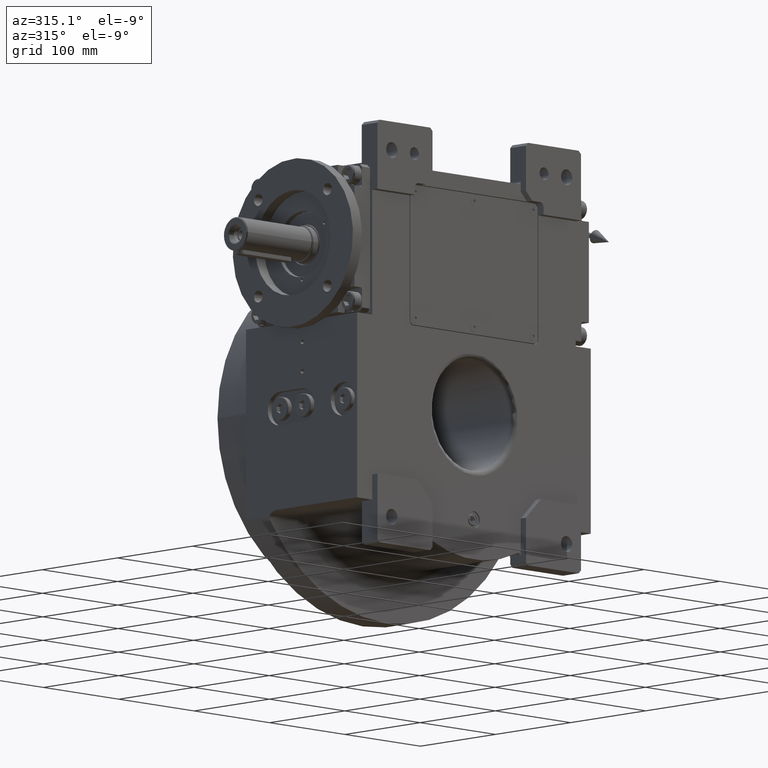
[diagram: clean part render]
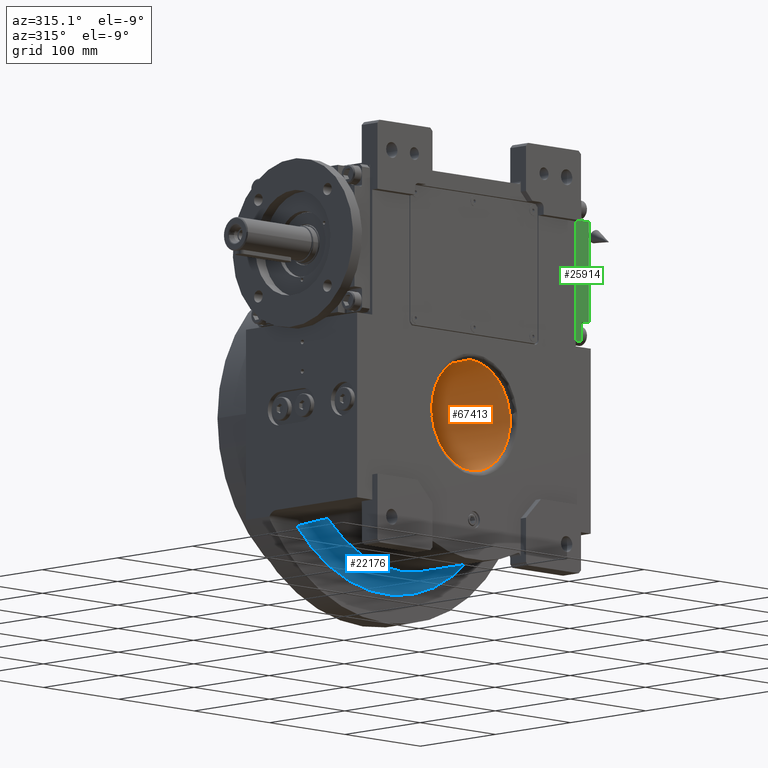
[diagram: same view with three faces highlighted in distinct colors, each labeled with its STEP entity id]
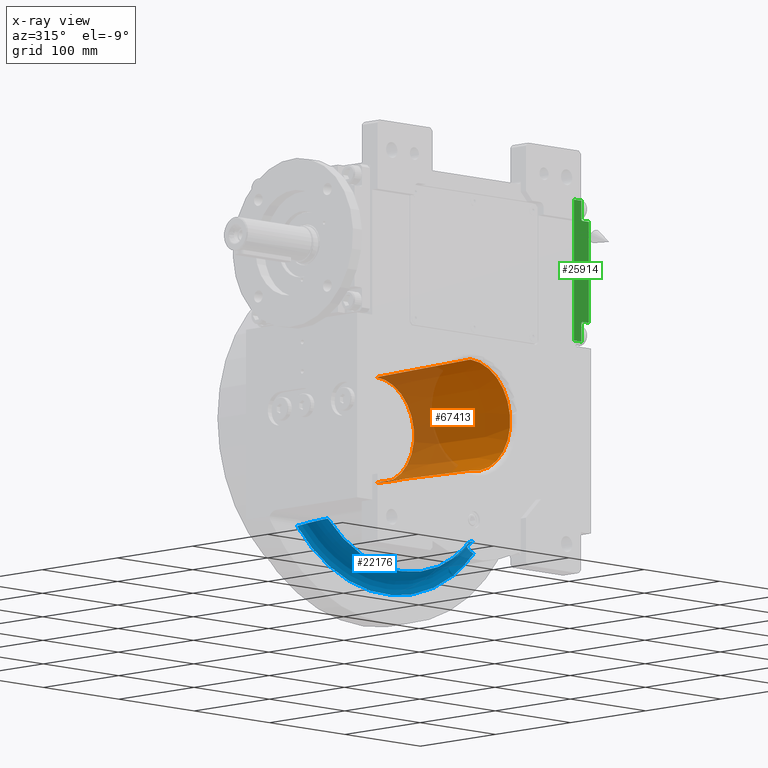
[diagram: x-ray of the same camera — body ghosted, the three highlighted faces saturated]
A machine part, auxiliary view with three faces highlighted in distinct colors.
The next image is the same camera in x-ray (body ghosted, the three faces saturated) — at least one of them is partly hidden behind the body in this view.
Their STEP definitions:

[orange] entity #67413 — the highlighted conical surface has half-angle 1.292 deg.
#833 = CARTESIAN_POINT ( 'NONE',  ( -5.180071170158429987E-08, -68.11275406274060629, 3.434346457190809174E-14 ) ) ;
#3534 = EDGE_CURVE ( 'NONE', #53581, #41249, #32143, .T. ) ;
#7576 = AXIS2_PLACEMENT_3D ( 'NONE', #60350, #65660, #49352 ) ;
#8371 = CARTESIAN_POINT ( 'NONE',  ( -3.366447261396295104E-11, -68.11275327462200835, 52.88976135205919604 ) ) ;
#14754 = ORIENTED_EDGE ( 'NONE', *, *, #19788, .T. ) ;
#15939 = VECTOR ( 'NONE', #53600, 1000.000000000000114 ) ;
#16390 = ORIENTED_EDGE ( 'NONE', *, *, #47262, .F. ) ;
#16518 = DIRECTION ( 'NONE',  ( 0.000000000000000000, -1.000000000000000000, 1.836909530733564901E-16 ) ) ;
#16810 = EDGE_CURVE ( 'NONE', #53581, #32946, #59712, .T. ) ;
#17126 = DIRECTION ( 'NONE',  ( -2.310691404686089221E-08, 0.9999999999999997780, -1.490116125507999888E-08 ) ) ;
#18208 = CARTESIAN_POINT ( 'NONE',  ( 5.632922360699180090E-12, 57.06765196477320501, -50.06614318876450653 ) ) ;
#19788 = EDGE_CURVE ( 'NONE', #41249, #32261, #35940, .T. ) ;
#21499 = VECTOR ( 'NONE', #64099, 1000.000000000000114 ) ;
#22295 = LINE ( 'NONE', #26926, #15939 ) ;
#26071 = CARTESIAN_POINT ( 'NONE',  ( -5.647091595521470526E-12, 57.06765196477320501, 50.06614318876450653 ) ) ;
#26926 = CARTESIAN_POINT ( 'NONE',  ( 6.477127694746659705E-15, -68.11275327462179519, -52.88976135205919604 ) ) ;
#32143 = LINE ( 'NONE', #70163, #21499 ) ;
#32261 = VERTEX_POINT ( 'NONE', #18208 ) ;
#32946 = VERTEX_POINT ( 'NONE', #43586 ) ;
#35940 = CIRCLE ( 'NONE', #7576, 50.06614321695208503 ) ;
#41249 = VERTEX_POINT ( 'NONE', #26071 ) ;
#42159 = DIRECTION ( 'NONE',  ( 0.000000000000000000, 0.000000000000000000, 1.000000000000000000 ) ) ;
#43586 = CARTESIAN_POINT ( 'NONE',  ( 3.366158563859759886E-11, -68.11275327462200835, -52.88976135205919604 ) ) ;
#45942 = CONICAL_SURFACE ( 'NONE', #48212, 1.000000000000000000, 0.02255256665030591981 ) ;
#47262 = EDGE_CURVE ( 'NONE', #32946, #32261, #22295, .T. ) ;
#48212 = AXIS2_PLACEMENT_3D ( 'NONE', #70197, #16518, #42159 ) ;
#48545 = FACE_OUTER_BOUND ( 'NONE', #63856, .T. ) ;
#49352 = DIRECTION ( 'NONE',  ( 0.9817544671349441865, 1.960699413717118186E-08, -0.1901530074981230556 ) ) ;
#53581 = VERTEX_POINT ( 'NONE', #8371 ) ;
#53600 = DIRECTION ( 'NONE',  ( -2.761658737181604074E-18, 0.9997457016474147196, 0.02255065492437784494 ) ) ;
#53991 = ORIENTED_EDGE ( 'NONE', *, *, #16810, .F. ) ;
#55849 = DIRECTION ( 'NONE',  ( 0.9882587857891660388, 2.055887273401757417E-08, -0.1527893069246760438 ) ) ;
#56308 = AXIS2_PLACEMENT_3D ( 'NONE', #833, #17126, #55849 ) ;
#59712 = CIRCLE ( 'NONE', #56308, 52.88976140256119152 ) ;
#60350 = CARTESIAN_POINT ( 'NONE',  ( -3.083077640091004570E-08, 57.06765196477320501, 2.539432025222259547E-15 ) ) ;
#62025 = ORIENTED_EDGE ( 'NONE', *, *, #3534, .T. ) ;
#63856 = EDGE_LOOP ( 'NONE', ( #62025, #14754, #16390, #53991 ) ) ;
#64099 = DIRECTION ( 'NONE',  ( 5.523317474363207377E-18, 0.9997457016474147196, -0.02255065492437819882 ) ) ;
#65660 = DIRECTION ( 'NONE',  ( -1.997138262491069651E-08, 0.9999999999999997780, -6.123233971614118157E-17 ) ) ;
#67413 = ADVANCED_FACE ( 'NONE', ( #48545 ), #45942, .F. ) ;
#70163 = CARTESIAN_POINT ( 'NONE',  ( -1.295425538949331941E-14, -68.11275327462179519, 52.88976135205919604 ) ) ;
#70197 = CARTESIAN_POINT ( 'NONE',  ( 0.000000000000000000, 2232.333333333314840, -3.962844522719785252E-13 ) ) ;

[blue] entity #22176 — the highlighted toroidal blend (fillet) surface has major radius 158 mm and minor (blend) radius 20 mm.
#125 = ORIENTED_EDGE ( 'NONE', *, *, #47662, .T. ) ;
#364 = CARTESIAN_POINT ( 'NONE',  ( 98.48471084682699939, 33.97079976953421721, -99.63148764706355109 ) ) ;
#698 = CARTESIAN_POINT ( 'NONE',  ( 112.6337903164633758, 44.53780329086850287, -104.5239396644698502 ) ) ;
#1805 = CARTESIAN_POINT ( 'NONE',  ( -110.4507057160706438, 43.94872069333644049, -103.7991858523617452 ) ) ;
#2166 = CARTESIAN_POINT ( 'NONE',  ( -98.02791288108049628, 32.96098501412838999, -99.46561891031363700 ) ) ;
#2524 = CARTESIAN_POINT ( 'NONE',  ( -102.1052124814145685, 38.84748452432424415, -100.9274324292788094 ) ) ;
#2863 = CARTESIAN_POINT ( 'NONE',  ( -100.3652794098986902, 36.87972709017024897, -100.3072398612967220 ) ) ;
#3221 = CARTESIAN_POINT ( 'NONE',  ( -113.1631049617858622, 44.62956057005464316, -104.6995521603640498 ) ) ;
#3493 = CARTESIAN_POINT ( 'NONE',  ( 96.30723760260589472, 24.99999990761120117, -98.83797943607669367 ) ) ;
#3797 = CARTESIAN_POINT ( 'NONE',  ( -64.41635450183450473, 45.00000000000000000, -144.8381713325094324 ) ) ;
#4137 = CARTESIAN_POINT ( 'NONE',  ( -101.7965497933509909, 45.00000000000000000, -121.4959109195396110 ) ) ;
#4978 = CARTESIAN_POINT ( 'NONE',  ( 116.3458202215898751, 45.00009952038519856, -105.7365312948304279 ) ) ;
#5313 = CARTESIAN_POINT ( 'NONE',  ( 115.2789584378532908, 44.95770843063282030, -105.3909224794406327 ) ) ;
#5670 = CARTESIAN_POINT ( 'NONE',  ( 98.02029075397882707, 32.94461909195858595, -99.46305897812415253 ) ) ;
#6020 = CARTESIAN_POINT ( 'NONE',  ( 108.7699844828208597, 43.31492083898538681, -103.2332460237712013 ) ) ;
#6358 = CARTESIAN_POINT ( 'NONE',  ( 102.0508725851416756, 38.79353669661188064, -100.9077352945622579 ) ) ;
#6400 = CARTESIAN_POINT ( 'NONE',  ( -117.1660380023439956, 45.00001431931600138, -105.9999239592122109 ) ) ;
#7117 = CARTESIAN_POINT ( 'NONE',  ( -116.7646410946360049, 44.99998530194281443, -105.8709790865936355 ) ) ;
#7461 = CARTESIAN_POINT ( 'NONE',  ( -101.7297215537501955, 38.46499574230020357, -100.7942339710923818 ) ) ;
#7582 = CARTESIAN_POINT ( 'NONE',  ( 97.02992846564075080, 30.28103333706581068, -99.10657987401545199 ) ) ;
#7824 = CARTESIAN_POINT ( 'NONE',  ( -113.2014659484088526, 44.63667040653874096, -104.7121690570024697 ) ) ;
#8192 = CARTESIAN_POINT ( 'NONE',  ( -102.7503572650319370, 39.46430266327028846, -101.1553830789643200 ) ) ;
#8528 = CARTESIAN_POINT ( 'NONE',  ( -109.4752336681219163, 43.59488064486146897, -103.4714376798484778 ) ) ;
#9456 = CARTESIAN_POINT ( 'NONE',  ( -117.1660380023439956, 45.00001431931600138, -105.9999239592122109 ) ) ;
#9796 = CARTESIAN_POINT ( 'NONE',  ( -21.98885812455705135, 45.00000000000000000, -156.9786534940434990 ) ) ;
#10633 = CARTESIAN_POINT ( 'NONE',  ( 97.85275650508563672, 32.56236914450305875, -99.40243881657917768 ) ) ;
#10989 = CARTESIAN_POINT ( 'NONE',  ( 117.1665481270144085, 45.00000000000000000, -106.0000000000000000 ) ) ;
#11338 = CARTESIAN_POINT ( 'NONE',  ( 106.5230779561971985, 42.22457348863358106, -102.4693920495566175 ) ) ;
#12236 = CARTESIAN_POINT ( 'NONE',  ( -1.421085471520200056E-14, 25.00000000000330047, 8.526512829121199706E-14 ) ) ;
#12625 = TOROIDAL_SURFACE ( 'NONE', #13795, 158.0000000000000000, 20.00000000000000000 ) ;
#12789 = CARTESIAN_POINT ( 'NONE',  ( -102.2964152114121248, 39.03719391014137585, -100.9951587366911241 ) ) ;
#12904 = CARTESIAN_POINT ( 'NONE',  ( 96.30961973117844366, 26.25722250582394679, -98.83759602172548853 ) ) ;
#13135 = CARTESIAN_POINT ( 'NONE',  ( -109.1605355308136609, 43.47300632657120900, -103.3652613385540207 ) ) ;
#13496 = CARTESIAN_POINT ( 'NONE',  ( -109.4371449076648020, 43.58039139906387760, -103.4586012990809252 ) ) ;
#13795 = AXIS2_PLACEMENT_3D ( 'NONE', #46345, #13985, #29613 ) ;
#13869 = CARTESIAN_POINT ( 'NONE',  ( -112.2734746109593260, 44.44468254698182363, -104.4058678920740988 ) ) ;
#13985 = DIRECTION ( 'NONE',  ( 0.000000000000000000, -1.000000000000000000, 0.000000000000000000 ) ) ;
#14186 = CARTESIAN_POINT ( 'NONE',  ( -112.8981352970310326, 44.57872936801063446, -104.6123043516303426 ) ) ;
#15090 = VERTEX_POINT ( 'NONE', #24295 ) ;
#15962 = CARTESIAN_POINT ( 'NONE',  ( 102.6312996237867168, 39.35459407148432831, -101.1127928936633111 ) ) ;
#16297 = CARTESIAN_POINT ( 'NONE',  ( 102.7499884497114238, 39.46404896067710411, -101.1546350695295473 ) ) ;
#16652 = CARTESIAN_POINT ( 'NONE',  ( 102.7270658436678303, 39.44302597977765146, -101.1465560309166420 ) ) ;
#18091 = CARTESIAN_POINT ( 'NONE',  ( -106.7795100371588859, 42.36370184623466884, -102.5536834389168064 ) ) ;
#18450 = CARTESIAN_POINT ( 'NONE',  ( -107.7423295384170245, 42.85102449398583957, -102.8832939820001116 ) ) ;
#18569 = CARTESIAN_POINT ( 'NONE',  ( 97.48234618482011626, 31.63550269026396577, -99.26904948111314297 ) ) ;
#18805 = CARTESIAN_POINT ( 'NONE',  ( -106.1807118417980007, 42.01955951595629557, -102.3474989434262028 ) ) ;
#19171 = CARTESIAN_POINT ( 'NONE',  ( -111.3923422199803639, 44.22351198310433773, -104.1132547796615171 ) ) ;
#19528 = CARTESIAN_POINT ( 'NONE',  ( -96.88299641673512497, 29.71310565171039997, -99.04611361363333799 ) ) ;
#20945 = CARTESIAN_POINT ( 'NONE',  ( 96.30723760260589472, 24.99999990761120117, -98.83797943607669367 ) ) ;
#21311 = CARTESIAN_POINT ( 'NONE',  ( 108.4800013347112042, 43.18941542812900281, -103.1351226245848949 ) ) ;
#21662 = CARTESIAN_POINT ( 'NONE',  ( 97.90664548853494864, 32.68827471051651656, -99.42190602882016037 ) ) ;
#22176 = ADVANCED_FACE ( 'NONE', ( #59482 ), #12625, .F. ) ;
#23453 = CARTESIAN_POINT ( 'NONE',  ( -97.50460443159397528, 31.69185725558088507, -99.27465210942251872 ) ) ;
#23807 = CARTESIAN_POINT ( 'NONE',  ( -102.7293842753246480, 39.44505987403460523, -101.1479936078508217 ) ) ;
#24165 = CARTESIAN_POINT ( 'NONE',  ( -98.03293628953102257, 32.97209666675917106, -99.46744407336238680 ) ) ;
#24295 = CARTESIAN_POINT ( 'NONE',  ( 117.1665481270144085, 45.00000000000000000, -106.0000000000000000 ) ) ;
#24512 = CARTESIAN_POINT ( 'NONE',  ( -101.4886153696198647, 38.20591153641694859, -100.7084430121944365 ) ) ;
#24661 = VERTEX_POINT ( 'NONE', #6400 ) ;
#24865 = CARTESIAN_POINT ( 'NONE',  ( -113.2270883732561799, 44.64139532762662554, -104.7205948346391580 ) ) ;
#25781 = CARTESIAN_POINT ( 'NONE',  ( 21.98865651185845138, 45.00000000000000000, -156.9786712556644943 ) ) ;
#26618 = CARTESIAN_POINT ( 'NONE',  ( 109.3745464157829872, 43.55663680806992488, -103.4372806364187625 ) ) ;
#27672 = CARTESIAN_POINT ( 'NONE',  ( 109.1198961715385565, 43.45704474481149759, -103.3513959743997361 ) ) ;
#28007 = CARTESIAN_POINT ( 'NONE',  ( 102.3983983773695172, 39.13454416598305130, -101.0305906898127120 ) ) ;
#28761 = CARTESIAN_POINT ( 'NONE',  ( -117.1660380023439956, 45.00001431931600138, -105.9999239592122109 ) ) ;
#29110 = CARTESIAN_POINT ( 'NONE',  ( -102.7556243044858064, 39.46912785005818591, -101.1572386221299240 ) ) ;
#29211 = B_SPLINE_CURVE_WITH_KNOTS ( 'NONE', 3,
 ( #59707, #56116, #67478, #19528, #45847, #57179, #23453, #51534, #66773, #56846, #61457, #29474, #29830, #2166, #24165, #34461, #41227, #2863, #51187, #24512, #7461, #2524, #12789, #35528, #39807, #45495, #23807, #56472, #8192, #29110, #67130, #45138, #18805, #18091, #18450, #62856, #62521, #40516, #13135, #40154, #62167, #13496, #35171, #50821, #46207, #8528, #67840, #1805, #19171, #40872, #13869, #30176, #51891, #14186, #61802, #3221, #7824, #24865, #34813, #46561, #68204, #55784, #7117, #28761 ),
 .UNSPECIFIED., .F., .F.,
 ( 4, 2, 2, 2, 1, 1, 1, 1, 2, 2, 2, 2, 2, 1, 1, 1, 1, 1, 2, 2, 2, 2, 2, 1, 1, 1, 1, 1, 1, 2, 2, 2, 2, 2, 1, 1, 1, 2, 2, 2, 4 ),
 ( 0.000000000000000000, 0.1250000000000111300, 0.1875000000000168754, 0.2187500000000195677, 0.2343750000000205391, 0.2421875000000207612, 0.2460937500000210110, 0.2480468750000210110, 0.2490234375000210942, 0.2500000000000211497, 0.3750000000000347500, 0.4375000000000414113, 0.4687500000000452416, 0.4843750000000466294, 0.4921875000000472955, 0.4960937500000481282, 0.4980468750000489053, 0.4990234375000496825, 0.4995117187500495715, 0.5000000000000494049, 0.6250000000001078027, 0.6875000000001370015, 0.7187500000001518785, 0.7343750000001594280, 0.7421875000001629807, 0.7460937500001643130, 0.7480468750001647571, 0.7490234375001647571, 0.7495117187501649791, 0.7497558593751655343, 0.7500000000001662004, 0.8125000000001361133, 0.8437500000001215694, 0.8593750000001149081, 0.8671875000001115774, 0.8710937500001101341, 0.8730468750001093570, 0.8740234375001090239, 0.8750000000001086908, 0.9375000000000544009, 1.000000000000000000 ),
 .UNSPECIFIED. ) ;
#29233 = CARTESIAN_POINT ( 'NONE',  ( 97.36157097504504065, 31.29695299417163667, -99.22571455668132501 ) ) ;
#29474 = CARTESIAN_POINT ( 'NONE',  ( -98.00546406152352574, 32.91113758827333413, -99.45746077517848960 ) ) ;
#29613 = DIRECTION ( 'NONE',  ( -0.7986875995212583401, 0.000000000000000000, -0.6017458918604845497 ) ) ;
#29830 = CARTESIAN_POINT ( 'NONE',  ( -98.01892274206869615, 32.94104951340082010, -99.46235204995994650 ) ) ;
#30176 = CARTESIAN_POINT ( 'NONE',  ( -112.4607002535011873, 44.48710846717178669, -104.4678539401486432 ) ) ;
#30609 = VERTEX_POINT ( 'NONE', #67693 ) ;
#30774 = CARTESIAN_POINT ( 'NONE',  ( -83.96482471285699489, 45.00000000000000000, -134.4515343287771998 ) ) ;
#31120 = EDGE_CURVE ( 'NONE', #43902, #15090, #33443, .T. ) ;
#31455 = CARTESIAN_POINT ( 'NONE',  ( 43.59869364544065462, 45.00000000000000000, -152.4011103777230005 ) ) ;
#31962 = CARTESIAN_POINT ( 'NONE',  ( 109.2723530990759429, 43.51694133331180581, -103.4028213162863494 ) ) ;
#32295 = CARTESIAN_POINT ( 'NONE',  ( 109.4247943805015808, 43.57593919126923510, -103.4542186149024303 ) ) ;
#32658 = CARTESIAN_POINT ( 'NONE',  ( 102.1879067513015258, 38.93036966924995568, -100.9561944668075455 ) ) ;
#33012 = CARTESIAN_POINT ( 'NONE',  ( 107.9131611571321798, 42.93445073039974602, -102.9430406042122996 ) ) ;
#33443 = B_SPLINE_CURVE_WITH_KNOTS ( 'NONE', 3,
 ( #20945, #12904, #34575, #56231, #7582, #29233, #18569, #44031, #42984, #10633, #21662, #49360, #43673, #5670, #69972, #53650, #64265, #364, #64974, #65312, #37998, #64613, #54340, #6358, #32658, #28007, #49719, #15962, #60001, #16652, #48309, #16297, #38356, #42631, #37651, #54695, #65666, #11338, #59644, #33012, #21311, #6020, #27672, #31962, #26618, #32295, #53989, #43340, #698, #59304, #5313, #4978, #10989 ),
 .UNSPECIFIED., .F., .F.,
 ( 4, 2, 2, 2, 2, 1, 1, 1, 1, 2, 2, 2, 2, 2, 2, 1, 1, 1, 1, 1, 2, 2, 2, 2, 2, 1, 1, 2, 2, 2, 2, 4 ),
 ( 0.000000000000000000, 0.1249999999998392397, 0.1874999999997588596, 0.2187499999997192801, 0.2343749999996997124, 0.2421874999996898037, 0.2460937499996850297, 0.2480468749996828648, 0.2490234374996819489, 0.2495117187496817546, 0.2499999999996815325, 0.3749999999995941025, 0.4374999999995501376, 0.4687499999995277111, 0.4843749999995164979, 0.4921874999995102251, 0.4960937499995068944, 0.4980468749995055622, 0.4990234374995043964, 0.4995117187495035638, 0.4997558593745026756, 0.4999999999995017319, 0.6249999999996301847, 0.6874999999996945776, 0.7187499999997267741, 0.7343749999997423172, 0.7421874999997500888, 0.7460937499997538636, 0.7499999999997576383, 0.8124999999998182565, 0.8749999999998788747, 1.000000000000000000 ),
 .UNSPECIFIED. ) ;
#34461 = CARTESIAN_POINT ( 'NONE',  ( -98.54806655395772452, 34.10925224219861462, -99.65458556124448819 ) ) ;
#34575 = CARTESIAN_POINT ( 'NONE',  ( 96.42904774952934588, 27.58533141082950735, -98.88715296331103843 ) ) ;
#34813 = CARTESIAN_POINT ( 'NONE',  ( -113.2388050366955667, 44.64354608652779177, -104.7244472051020097 ) ) ;
#35171 = CARTESIAN_POINT ( 'NONE',  ( -109.4570425004065584, 43.58796948114684966, -103.4653075323048057 ) ) ;
#35528 = CARTESIAN_POINT ( 'NONE',  ( -102.5255579008334479, 39.25560902335374891, -101.0761116096675352 ) ) ;
#37504 = CARTESIAN_POINT ( 'NONE',  ( 112.2734842588863842, 45.00000000000000000, -111.4014792453958052 ) ) ;
#37651 = CARTESIAN_POINT ( 'NONE',  ( 103.3977546460237562, 40.05675034197459183, -101.3829155952155929 ) ) ;
#37998 = CARTESIAN_POINT ( 'NONE',  ( 100.6690459606547705, 37.27067431726949565, -100.4179235864729520 ) ) ;
#38356 = CARTESIAN_POINT ( 'NONE',  ( 102.7545780126843340, 39.46825219890278191, -101.1562525515439432 ) ) ;
#39807 = CARTESIAN_POINT ( 'NONE',  ( -102.6416497146342408, 39.36405972610243964, -101.1170677917055087 ) ) ;
#40154 = CARTESIAN_POINT ( 'NONE',  ( -109.3181507463841768, 43.53466286722584755, -103.4184730461046655 ) ) ;
#40516 = CARTESIAN_POINT ( 'NONE',  ( -108.8488826586078488, 43.34740058216166858, -103.2598516227548657 ) ) ;
#40872 = CARTESIAN_POINT ( 'NONE',  ( -111.7301272109056498, 44.31438120929762192, -104.2256781774488275 ) ) ;
#41227 = CARTESIAN_POINT ( 'NONE',  ( -99.18958940278133696, 35.23783606590234285, -99.88545211301371296 ) ) ;
#41927 = EDGE_CURVE ( 'NONE', #30609, #24661, #29211, .T. ) ;
#42116 = ORIENTED_EDGE ( 'NONE', *, *, #66227, .F. ) ;
#42631 = CARTESIAN_POINT ( 'NONE',  ( 102.7579227797914854, 39.47131357591320011, -101.1574313033593882 ) ) ;
#42984 = CARTESIAN_POINT ( 'NONE',  ( 97.74688043386996128, 32.31025036503177006, -99.36423024539772086 ) ) ;
#43340 = CARTESIAN_POINT ( 'NONE',  ( 111.1261820987919577, 44.16061954937864442, -104.0245863794300476 ) ) ;
#43673 = CARTESIAN_POINT ( 'NONE',  ( 98.00384888286747298, 32.90804153405046151, -99.45709908681564571 ) ) ;
#43902 = VERTEX_POINT ( 'NONE', #3493 ) ;
#44031 = CARTESIAN_POINT ( 'NONE',  ( 97.67883289305895289, 32.14176207053703394, -99.33972559280917380 ) ) ;
#44934 = DIRECTION ( 'NONE',  ( -0.6978784504689377055, -1.201735973212917754E-14, -0.7162162162162165613 ) ) ;
#45138 = CARTESIAN_POINT ( 'NONE',  ( -104.5087876018555448, 40.95577502017587790, -101.7701399989986726 ) ) ;
#45495 = CARTESIAN_POINT ( 'NONE',  ( -102.7000760039274923, 39.41809226182505910, -101.1376651757015992 ) ) ;
#45847 = CARTESIAN_POINT ( 'NONE',  ( -97.06297459206342637, 30.37875981429069938, -99.11244784926033446 ) ) ;
#46207 = CARTESIAN_POINT ( 'NONE',  ( -109.4712663826515495, 43.59337483259150048, -103.4701008455638771 ) ) ;
#46345 = CARTESIAN_POINT ( 'NONE',  ( -2.057655180072804513E-28, 25.00000000000000000, 0.000000000000000000 ) ) ;
#46561 = CARTESIAN_POINT ( 'NONE',  ( -114.1474023438828596, 44.80939919492819001, -105.0231329103317108 ) ) ;
#46958 = AXIS2_PLACEMENT_3D ( 'NONE', #12236, #48882, #44934 ) ;
#47126 = CARTESIAN_POINT ( 'NONE',  ( -4.611055492802900184E-05, 45.00000000000000000, -158.5100177325210211 ) ) ;
#47662 = EDGE_CURVE ( 'NONE', #24661, #15090, #48991, .T. ) ;
#47835 = CARTESIAN_POINT ( 'NONE',  ( 83.96432363714549751, 45.00000000000000000, -134.4519182908271944 ) ) ;
#48123 = CIRCLE ( 'NONE', #46958, 138.0000000000000853 ) ;
#48309 = CARTESIAN_POINT ( 'NONE',  ( 102.7431065449346335, 39.45774344501223396, -101.1522096567761935 ) ) ;
#48882 = DIRECTION ( 'NONE',  ( -6.789570679155330615E-15, -1.000000000000000000, 2.340198913247644897E-14 ) ) ;
#48991 = B_SPLINE_CURVE_WITH_KNOTS ( 'NONE', 3,
 ( #9456, #58446, #4137, #30774, #3797, #68094, #9796, #47126, #25781, #31455, #53149, #47835, #57076, #37504, #58804 ),
 .UNSPECIFIED., .F., .F.,
 ( 4, 1, 1, 1, 1, 1, 1, 1, 1, 1, 1, 1, 4 ),
 ( 0.000000000000000000, 0.08230548578115680358, 0.1657096187028465062, 0.2495666647837894991, 0.3333347921405555025, 0.4167731287220570180, 0.4999985279742490407, 0.5832235921521119471, 0.6666606947103590475, 0.7504274457011980148, 0.8342845243559869894, 0.9176906032219021014, 1.000000000000000000 ),
 .UNSPECIFIED. ) ;
#49360 = CARTESIAN_POINT ( 'NONE',  ( 97.97117223922006701, 32.83484338586081464, -99.44526033932362452 ) ) ;
#49719 = CARTESIAN_POINT ( 'NONE',  ( 102.5048850568784786, 39.23635417113926138, -101.0681975133973225 ) ) ;
#50821 = CARTESIAN_POINT ( 'NONE',  ( -109.4655760309758534, 43.59121322662022635, -103.4681832982696505 ) ) ;
#51187 = CARTESIAN_POINT ( 'NONE',  ( -100.7926875676756566, 37.41839457156896742, -100.4603088552798908 ) ) ;
#51534 = CARTESIAN_POINT ( 'NONE',  ( -97.69402759877473841, 32.17824278475688260, -99.34394788754170236 ) ) ;
#51891 = CARTESIAN_POINT ( 'NONE',  ( -112.7507830709306091, 44.54855493280744128, -104.5636799672140143 ) ) ;
#52840 = EDGE_LOOP ( 'NONE', ( #42116, #66926, #125, #58087 ) ) ;
#53149 = CARTESIAN_POINT ( 'NONE',  ( 64.41571053208309650, 45.00000000000000000, -144.8384350625149750 ) ) ;
#53650 = CARTESIAN_POINT ( 'NONE',  ( 98.03207687276184856, 32.97073713156943597, -99.46733246904339865 ) ) ;
#53989 = CARTESIAN_POINT ( 'NONE',  ( 110.3220350555751281, 43.91652627139864506, -103.7565656085486836 ) ) ;
#54340 = CARTESIAN_POINT ( 'NONE',  ( 101.6495231024777866, 38.38138673485482855, -100.7657376625949581 ) ) ;
#54695 = CARTESIAN_POINT ( 'NONE',  ( 104.2463131879213307, 40.76393802617366191, -101.6826970027681085 ) ) ;
#55784 = CARTESIAN_POINT ( 'NONE',  ( -116.2352257174750463, 44.99001509439585789, -105.7012472922178006 ) ) ;
#56116 = CARTESIAN_POINT ( 'NONE',  ( -96.30868053554550556, 26.34585515008642886, -98.83642070424104986 ) ) ;
#56231 = CARTESIAN_POINT ( 'NONE',  ( 96.84980827649697233, 29.60359732435895452, -99.04162677069164999 ) ) ;
#56472 = CARTESIAN_POINT ( 'NONE',  ( -102.7419653505997275, 39.45660694743568797, -101.1524264426147681 ) ) ;
#56846 = CARTESIAN_POINT ( 'NONE',  ( -97.91255337353909738, 32.70133367099210631, -99.42366482389860494 ) ) ;
#57076 = CARTESIAN_POINT ( 'NONE',  ( 101.7963591369399978, 45.00000000000000000, -121.4958819722340024 ) ) ;
#57179 = CARTESIAN_POINT ( 'NONE',  ( -97.38739292718010176, 31.36510134331906130, -99.23164404730367494 ) ) ;
#58087 = ORIENTED_EDGE ( 'NONE', *, *, #31120, .F. ) ;
#58446 = CARTESIAN_POINT ( 'NONE',  ( -112.2729284226672064, 45.00000000000000000, -111.4014722087630105 ) ) ;
#58804 = CARTESIAN_POINT ( 'NONE',  ( 117.1665481270144085, 45.00000000000000000, -106.0000000000000000 ) ) ;
#59304 = CARTESIAN_POINT ( 'NONE',  ( 113.3373850614359384, 44.67107231412343538, -104.7552860952817042 ) ) ;
#59482 = FACE_OUTER_BOUND ( 'NONE', #52840, .T. ) ;
#59644 = CARTESIAN_POINT ( 'NONE',  ( 107.5527563214296549, 42.75924596825704072, -102.8205401285183029 ) ) ;
#59707 = CARTESIAN_POINT ( 'NONE',  ( -96.30722393658518854, 24.99999992571344976, -98.83796549704690904 ) ) ;
#60001 = CARTESIAN_POINT ( 'NONE',  ( 102.6950527371998163, 39.41357277141199233, -101.1352714509385038 ) ) ;
#61457 = CARTESIAN_POINT ( 'NONE',  ( -97.97424618332217960, 32.84128268383337712, -99.44611099143347133 ) ) ;
#61802 = CARTESIAN_POINT ( 'NONE',  ( -113.0741043758506521, 44.61281630514807972, -104.6702653786944808 ) ) ;
#62167 = CARTESIAN_POINT ( 'NONE',  ( -109.3974056362629312, 43.56519796802493971, -103.4452044021865618 ) ) ;
#62521 = CARTESIAN_POINT ( 'NONE',  ( -108.5878809751568355, 43.23598813457415702, -103.1712700995225731 ) ) ;
#62856 = CARTESIAN_POINT ( 'NONE',  ( -108.0740276487307767, 43.00863225675112034, -102.9965373334888028 ) ) ;
#64265 = CARTESIAN_POINT ( 'NONE',  ( 98.03505203622908937, 32.97731647600386395, -99.46841138892769152 ) ) ;
#64613 = CARTESIAN_POINT ( 'NONE',  ( 101.3949774993228203, 38.10441288670152460, -100.6755621131664640 ) ) ;
#64974 = CARTESIAN_POINT ( 'NONE',  ( 99.07132607232249200, 35.05063944442410673, -99.84668655224699307 ) ) ;
#65312 = CARTESIAN_POINT ( 'NONE',  ( 100.2350872385880791, 36.71107100005902879, -100.2633408774202195 ) ) ;
#65666 = CARTESIAN_POINT ( 'NONE',  ( 105.9055068370100230, 41.85610961708399458, -102.2571069029231410 ) ) ;
#66227 = EDGE_CURVE ( 'NONE', #30609, #43902, #48123, .T. ) ;
#66773 = CARTESIAN_POINT ( 'NONE',  ( -97.79214034478044937, 32.42049839196046435, -99.37979107747185026 ) ) ;
#66926 = ORIENTED_EDGE ( 'NONE', *, *, #41927, .T. ) ;
#67130 = CARTESIAN_POINT ( 'NONE',  ( -103.5604638868912701, 40.20595371232317206, -101.4407642183008420 ) ) ;
#67478 = CARTESIAN_POINT ( 'NONE',  ( -96.45153004134235175, 27.70310141048831198, -98.88764133614009211 ) ) ;
#67693 = CARTESIAN_POINT ( 'NONE',  ( -96.30722393658518854, 24.99999992571344976, -98.83796549704690904 ) ) ;
#67840 = CARTESIAN_POINT ( 'NONE',  ( -109.9185748977876074, 43.76307598258188847, -103.6208235213127153 ) ) ;
#68094 = CARTESIAN_POINT ( 'NONE',  ( -43.59914018231270205, 45.00000000000000000, -152.4009961974019802 ) ) ;
#68204 = CARTESIAN_POINT ( 'NONE',  ( -114.9267522836661755, 44.89477428892062960, -105.2774722197928270 ) ) ;
#69972 = CARTESIAN_POINT ( 'NONE',  ( 98.02735946511637621, 32.96029053751003346, -99.46562191245601525 ) ) ;

[green] entity #25914 — the highlighted planar face has unit normal (-0, -1, -0).
#357 = CARTESIAN_POINT ( 'NONE',  ( 67.00000000000322586, 0.000000000000000000, 70.00000000000322586 ) ) ;
#451 = VERTEX_POINT ( 'NONE', #37589 ) ;
#3172 = VERTEX_POINT ( 'NONE', #55290 ) ;
#3386 = DIRECTION ( 'NONE',  ( -4.829470157119430951E-14, 6.439293542825906357E-15, 1.000000000000000000 ) ) ;
#5307 = LINE ( 'NONE', #357, #56748 ) ;
#5913 = VECTOR ( 'NONE', #63778, 1000.000000000000000 ) ;
#6093 = CARTESIAN_POINT ( 'NONE',  ( -66.99999999999678835, 1.110223024625156540E-12, 69.99999999999678835 ) ) ;
#6708 = LINE ( 'NONE', #28358, #37984 ) ;
#7976 = VERTEX_POINT ( 'NONE', #8584 ) ;
#8111 = AXIS2_PLACEMENT_3D ( 'NONE', #66964, #45698, #66612 ) ;
#8459 = CARTESIAN_POINT ( 'NONE',  ( -47.99999999999676703, -12.00000000000001066, 69.99999999999815259 ) ) ;
#8584 = CARTESIAN_POINT ( 'NONE',  ( 67.00000000000322586, -10.00000000000000888, 70.00000000000322586 ) ) ;
#11000 = ORIENTED_EDGE ( 'NONE', *, *, #49084, .F. ) ;
#11709 = VERTEX_POINT ( 'NONE', #11841 ) ;
#11841 = CARTESIAN_POINT ( 'NONE',  ( 67.00000000000322586, 0.000000000000000000, 70.00000000000322586 ) ) ;
#12574 = VERTEX_POINT ( 'NONE', #8459 ) ;
#12809 = LINE ( 'NONE', #6093, #56885 ) ;
#13951 = CARTESIAN_POINT ( 'NONE',  ( -47.99999999999676703, -19.99999999999998934, 69.99999999999759837 ) ) ;
#13954 = DIRECTION ( 'NONE',  ( 0.000000000000000000, 1.000000000000000000, 6.938893903907228378E-15 ) ) ;
#15426 = EDGE_LOOP ( 'NONE', ( #22831, #32875, #53328, #45972, #41075, #52309, #11000, #55733, #67357, #41262 ) ) ;
#17230 = CARTESIAN_POINT ( 'NONE',  ( -66.99999999999678835, -10.00000000000000888, 69.99999999999678835 ) ) ;
#17997 = CARTESIAN_POINT ( 'NONE',  ( -49.99999999999676703, -10.00000000000000888, 69.99999999999759837 ) ) ;
#19461 = CARTESIAN_POINT ( 'NONE',  ( 48.00000000000320455, -19.99999999999888090, 70.00000000000241585 ) ) ;
#19614 = DIRECTION ( 'NONE',  ( -4.829470157119425902E-14, -6.439293542825906357E-15, -1.000000000000000000 ) ) ;
#22339 = DIRECTION ( 'NONE',  ( -1.351910376322508982E-28, -1.000000000000000000, -6.439293542825910301E-15 ) ) ;
#22831 = ORIENTED_EDGE ( 'NONE', *, *, #40914, .T. ) ;
#24334 = CIRCLE ( 'NONE', #67403, 2.000000000000000000 ) ;
#25914 = ADVANCED_FACE ( 'NONE', ( #30692 ), #29996, .T. ) ;
#26041 = VERTEX_POINT ( 'NONE', #32711 ) ;
#26128 = CARTESIAN_POINT ( 'NONE',  ( 67.00000000000322586, -10.00000000000000888, 70.00000000000322586 ) ) ;
#26655 = VERTEX_POINT ( 'NONE', #17997 ) ;
#28358 = CARTESIAN_POINT ( 'NONE',  ( -47.99999999999676703, -19.99999999999998934, 69.99999999999759837 ) ) ;
#28993 = CARTESIAN_POINT ( 'NONE',  ( -66.99999999999678835, 1.110223024625156540E-12, 69.99999999999678835 ) ) ;
#28999 = CARTESIAN_POINT ( 'NONE',  ( 50.00000000000323297, -9.999999999999980460, 70.00000000000241585 ) ) ;
#29813 = CIRCLE ( 'NONE', #8111, 2.000000000000001776 ) ;
#29996 = PLANE ( 'NONE',  #47395 ) ;
#30692 = FACE_OUTER_BOUND ( 'NONE', #15426, .T. ) ;
#31803 = EDGE_CURVE ( 'NONE', #451, #47401, #29813, .T. ) ;
#32012 = CARTESIAN_POINT ( 'NONE',  ( -69.99999999999678835, 1.110223024625156540E-12, 69.99999999999678835 ) ) ;
#32711 = CARTESIAN_POINT ( 'NONE',  ( -66.99999999999678835, -10.00000000000000888, 69.99999999999678835 ) ) ;
#32875 = ORIENTED_EDGE ( 'NONE', *, *, #62293, .T. ) ;
#35527 = CARTESIAN_POINT ( 'NONE',  ( 48.00000000000320455, -19.99999999999888090, 70.00000000000241585 ) ) ;
#35610 = DIRECTION ( 'NONE',  ( 1.000000000000000000, 1.359798985374719100E-28, 4.829470157119430951E-14 ) ) ;
#36976 = VERTEX_POINT ( 'NONE', #19461 ) ;
#37589 = CARTESIAN_POINT ( 'NONE',  ( 48.00000000000323297, -11.99999999999890044, 70.00000000000241585 ) ) ;
#37984 = VECTOR ( 'NONE', #60008, 1000.000000000000000 ) ;
#38258 = EDGE_CURVE ( 'NONE', #3172, #12574, #6708, .T. ) ;
#39689 = CARTESIAN_POINT ( 'NONE',  ( -66.99999999999678835, 1.110223024625156540E-12, 69.99999999999678835 ) ) ;
#40034 = VERTEX_POINT ( 'NONE', #28993 ) ;
#40515 = LINE ( 'NONE', #35527, #44337 ) ;
#40914 = EDGE_CURVE ( 'NONE', #26041, #26655, #65908, .T. ) ;
#41075 = ORIENTED_EDGE ( 'NONE', *, *, #56576, .T. ) ;
#41262 = ORIENTED_EDGE ( 'NONE', *, *, #63809, .T. ) ;
#41783 = LINE ( 'NONE', #26128, #5913 ) ;
#42763 = EDGE_CURVE ( 'NONE', #3172, #36976, #61646, .T. ) ;
#44337 = VECTOR ( 'NONE', #46560, 1000.000000000000000 ) ;
#45698 = DIRECTION ( 'NONE',  ( -4.829470157119425902E-14, -6.439293542825906357E-15, -1.000000000000000000 ) ) ;
#45972 = ORIENTED_EDGE ( 'NONE', *, *, #42763, .T. ) ;
#46560 = DIRECTION ( 'NONE',  ( 1.351910376322508982E-28, 1.000000000000000000, 6.439293542825910301E-15 ) ) ;
#47395 = AXIS2_PLACEMENT_3D ( 'NONE', #32012, #3386, #52400 ) ;
#47401 = VERTEX_POINT ( 'NONE', #28999 ) ;
#47457 = EDGE_CURVE ( 'NONE', #40034, #11709, #56011, .T. ) ;
#49084 = EDGE_CURVE ( 'NONE', #7976, #47401, #41783, .T. ) ;
#49953 = DIRECTION ( 'NONE',  ( 1.000000000000000000, 1.359798985374719100E-28, 4.829470157119430951E-14 ) ) ;
#52309 = ORIENTED_EDGE ( 'NONE', *, *, #31803, .T. ) ;
#52400 = DIRECTION ( 'NONE',  ( 1.000000000000000000, 1.359798985374719100E-28, 4.829470157119430951E-14 ) ) ;
#53328 = ORIENTED_EDGE ( 'NONE', *, *, #38258, .F. ) ;
#55109 = VECTOR ( 'NONE', #49953, 1000.000000000000000 ) ;
#55290 = CARTESIAN_POINT ( 'NONE',  ( -47.99999999999676703, -19.99999999999998934, 69.99999999999759837 ) ) ;
#55733 = ORIENTED_EDGE ( 'NONE', *, *, #55887, .F. ) ;
#55887 = EDGE_CURVE ( 'NONE', #11709, #7976, #5307, .T. ) ;
#56011 = LINE ( 'NONE', #39689, #65833 ) ;
#56576 = EDGE_CURVE ( 'NONE', #36976, #451, #40515, .T. ) ;
#56748 = VECTOR ( 'NONE', #22339, 1000.000000000000000 ) ;
#56885 = VECTOR ( 'NONE', #60767, 1000.000000000000000 ) ;
#60008 = DIRECTION ( 'NONE',  ( 1.351910376322508982E-28, 1.000000000000000000, 6.439293542825910301E-15 ) ) ;
#60767 = DIRECTION ( 'NONE',  ( -1.351910376322508982E-28, -1.000000000000000000, -6.439293542825910301E-15 ) ) ;
#61646 = LINE ( 'NONE', #13951, #66643 ) ;
#62264 = CARTESIAN_POINT ( 'NONE',  ( -49.99999999999676703, -12.00000000000001066, 69.99999999999759837 ) ) ;
#62293 = EDGE_CURVE ( 'NONE', #26655, #12574, #24334, .T. ) ;
#63778 = DIRECTION ( 'NONE',  ( -1.000000000000000000, -1.359798985374719100E-28, -4.829470157119430951E-14 ) ) ;
#63809 = EDGE_CURVE ( 'NONE', #40034, #26041, #12809, .T. ) ;
#65833 = VECTOR ( 'NONE', #66656, 1000.000000000000000 ) ;
#65908 = LINE ( 'NONE', #17230, #55109 ) ;
#66612 = DIRECTION ( 'NONE',  ( -1.000000000000000000, -8.673617379884027583E-16, -4.857225732735055447E-14 ) ) ;
#66643 = VECTOR ( 'NONE', #35610, 1000.000000000000000 ) ;
#66656 = DIRECTION ( 'NONE',  ( 1.000000000000000000, 1.359798985374719100E-28, 4.829470157119430951E-14 ) ) ;
#66964 = CARTESIAN_POINT ( 'NONE',  ( 50.00000000000323297, -11.99999999999998224, 70.00000000000241585 ) ) ;
#67357 = ORIENTED_EDGE ( 'NONE', *, *, #47457, .F. ) ;
#67403 = AXIS2_PLACEMENT_3D ( 'NONE', #62264, #19614, #13954 ) ;